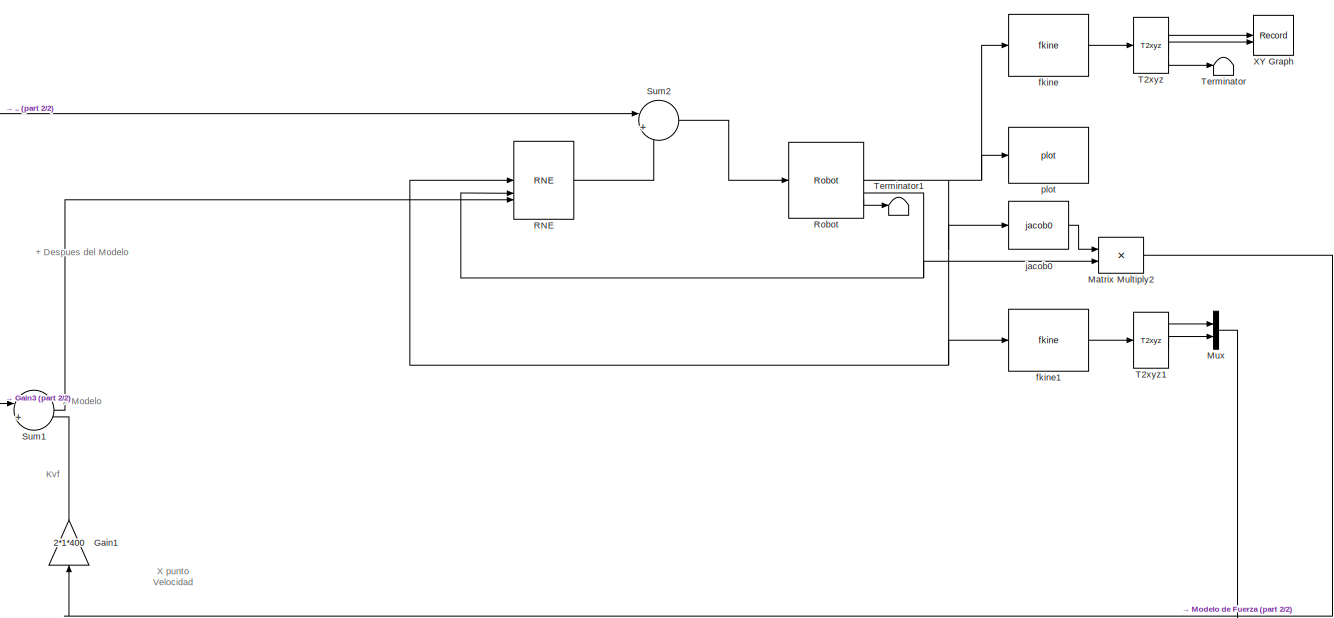
[diagram: root canvas - part 1/2, right side, full height]
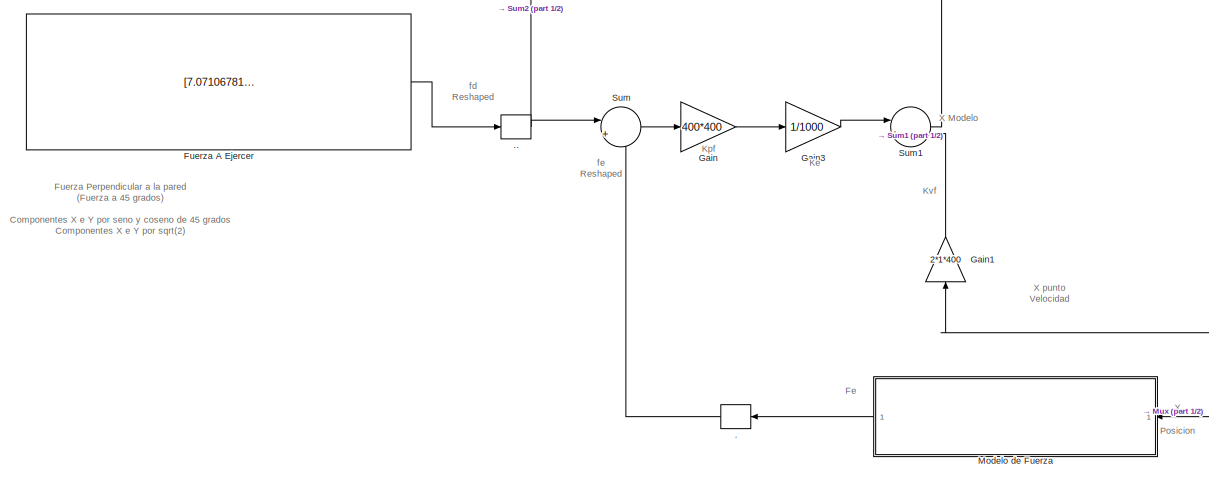
[diagram: root canvas - part 2/2, bottom left region]
MODEL slx_9b148fac4d0c
KIND model
CONFIG AbsTol = auto
CONFIG EnableMultiTasking = off
CONFIG FixedStep = auto
CONFIG MaxStep = auto
CONFIG MinStep = auto
CONFIG RelTol = 1e-3
CONFIG SampleTimeConstraint = Unconstrained
CONFIG SolverName = VariableStepAuto
CONFIG StartTime = 0.0
CONFIG StopTime = 10.0
BLOCK [Reshape] .
  NameLocation = top
  OutputDimensionality = Column vector (2-D)
BLOCK [Reshape] ..
  OutputDimensionality = Column vector (2-D)
BLOCK [Constant] Fuerza A Ejercer
  Value = [7.0710678118654752440084436210485 7.0710678118654752440084436210485]
BLOCK [Gain] Gain
  Gain = 400*400
BLOCK [Gain] Gain1
  Gain = 2*1*400
  NameLocation = right
BLOCK [Gain] Gain3
  Gain = 1/1000
BLOCK [Product] Matrix Multiply2
  Multiplication = Matrix(*)
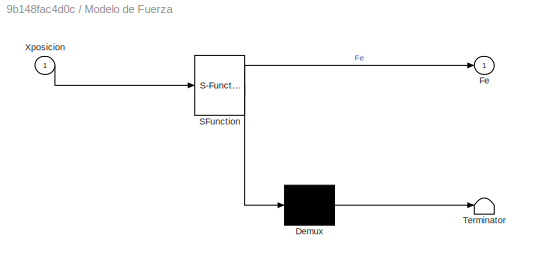
BLOCK [SubSystem] Modelo de Fuerza
  ErrorFcn = Stateflow.Translate.translate
  PermitHierarchicalResolution = ExplicitOnly
  SFBlockType = MATLAB Function
  TreatAsAtomicUnit = on
BLOCK [Demux] Modelo de Fuerza/ Demux 
  Outputs = 1
BLOCK [S-Function] Modelo de Fuerza/ SFunction 
  EnableBusSupport = on
  FunctionName = sf_sfun
  PortCounts = [1 2]
  SFcnIsStateOwnerBlock = off
  SFunctionDeploymentMode = off
  Tag = Stateflow S-Function 4
BLOCK [Terminator] Modelo de Fuerza/ Terminator 
BLOCK [Outport] Modelo de Fuerza/Fe
BLOCK [Inport] Modelo de Fuerza/Xposicion
BLOCK [Mux] Mux
  DisplayOption = bar
  Inputs = 2
BLOCK [Reference] RNE  REF=roblocks/Arm/RNE  (lib defined in mdl_2a292b13c81b, mdl_69400f8cfe22, +12 more)
  SourceBlock = roblocks/Arm/RNE
BLOCK [Reference] Robot  REF=roblocks/Arm/Robot  (lib defined in mdl_2a292b13c81b, mdl_69400f8cfe22, +12 more)
  SourceBlock = roblocks/Arm/Robot
BLOCK [Sum] Sum
  Inputs = |+-
BLOCK [Sum] Sum1
  Inputs = |+-
BLOCK [Sum] Sum2
  Inputs = |++
BLOCK [Reference] T2xyz  REF=roblocks/Toolbox/T2xyz  (lib defined in mdl_2a292b13c81b, mdl_69400f8cfe22, +12 more)
  SourceBlock = roblocks/Toolbox/T2xyz
BLOCK [Reference] T2xyz1  REF=roblocks/Toolbox/T2xyz  (lib defined in mdl_2a292b13c81b, mdl_69400f8cfe22, +12 more)
  SourceBlock = roblocks/Toolbox/T2xyz
BLOCK [Terminator] Terminator
BLOCK [Terminator] Terminator1
BLOCK [Record] XY Graph
  CompatibilityTag = XY
  FileSettingsInternal = {"entries":[{"content":{"excelSettings":{"content":{},"type":"Streamout.ExcelSettings"}},"type":"Streamout.FileSettingStorage","uuid":""}],"packageUris":["http:\/\/schema.mathworks.com\/mf0\/streamout_blocks\/R2020a"],"version":"1.0"}
  Layout = [1 1]
  SignalsInternal = {"entries":[{"content":{"signals":[{"content":{"blockPath":[],"dimensions":[1],"domain":"","lineColor":"#a2142f","plots":[1],"port":1,"signalID":32,"signalName":"XY Graph:1"},"type":"RecordBlkView.Signal","uuid":""},{"content":{"blockPath":[],"dimensions":[1],"domain":"","lineColor":"#139fff","plots":[1],"port":2,"signalID":35,"signalName":"XY Graph:2"},"type":"RecordBlkView.Signal","uuid":""}]},"...<+142ch>
  VisualizationBindings = {"xyplotplugin":{"info":[{"series":[{"bindingParametersList":[{"parameter":"X-Axis","signalID":32,"signalName":"XY Graph:1"},{"parameter":"Y-Axis","signalID":35,"signalName":"XY Graph:2"}],"seriesID":33085}],"subplotID":1}]}}
  st = -1
BLOCK [Reference] fkine  REF=roblocks/Arm/fkine  (lib defined in mdl_2a292b13c81b, mdl_69400f8cfe22, +12 more)
  SourceBlock = roblocks/Arm/fkine
BLOCK [Reference] fkine1  REF=roblocks/Arm/fkine  (lib defined in mdl_2a292b13c81b, mdl_69400f8cfe22, +12 more)
  SourceBlock = roblocks/Arm/fkine
BLOCK [Reference] jacob0   REF=roblocks/Arm/jacob0  (lib defined in mdl_2a292b13c81b, mdl_69400f8cfe22, +12 more)

  SourceBlock = roblocks/Arm/jacob0
BLOCK [Reference] plot  REF=roblocks/Arm/plot  (lib defined in mdl_2a292b13c81b, mdl_69400f8cfe22, +12 more)
  SourceBlock = roblocks/Arm/plot
ANNOTATION (root): + Despues del Modelo
ANNOTATION (root): Fe
ANNOTATION (root): Fuerza Perpendicular a la pared (Fuerza a 45 grados) Componentes X e Y por seno y coseno de 45 grados Componentes X e Y por sqrt(2) Fuerza dato = 10N Fuerza en ejes = 10.sen o cos (45)
ANNOTATION (root): Ke
ANNOTATION (root): Kpf
ANNOTATION (root): Kvf
ANNOTATION (root): X Posicion
ANNOTATION (root): X Modelo
ANNOTATION (root): X punto Velocidad
ANNOTATION (root): fd Reshaped
ANNOTATION (root): fe Reshaped
NET ..:1 -> Sum2:1, Sum:1
LINE .:1 -> Sum:2
LINE Fuerza A Ejercer:1 -> ..:1
LINE Gain1:1 -> Sum1:2
LINE Gain3:1 -> Sum1:1
LINE Gain:1 -> Gain3:1
LINE Matrix Multiply2:1 -> Gain1:1
LINE Modelo de Fuerza:1 -> .:1
LINE Mux:1 -> Modelo de Fuerza:1
LINE RNE:1 -> Sum2:2
NET Robot:1 -> RNE:1, fkine1:1, fkine:1, jacob0 :1, plot:1
NET Robot:2 -> Matrix Multiply2:2, RNE:2
LINE Robot:3 -> Terminator1:1
LINE Sum1:1 -> RNE:3
LINE Sum2:1 -> Robot:1
LINE Sum:1 -> Gain:1
LINE T2xyz1:1 -> Mux:1
LINE T2xyz1:2 -> Mux:2
LINE T2xyz:1 -> XY Graph:1
LINE T2xyz:2 -> XY Graph:2
LINE T2xyz:3 -> Terminator:1
LINE fkine1:1 -> T2xyz1:1
LINE fkine:1 -> T2xyz:1
LINE jacob0 :1 -> Matrix Multiply2:1
note: NET lines group one-source signal fan-out (src -> all destinations, sorted); 1:1 wires keep LINE
CHART Modelo de Fuerza states=1 transitions=1
  STATE_LABEL 'eML_blk_kernel()'
  STATE_LABEL 'SCRIPT:\n%Input: Vector de coordenadas bidimensionales Xposicion como entrada\n%Output: Vector de fuerzas bidimensionales Fe \n\n%Description: Evalar la posición del punto representado por las coordenadas \n%Xposicion con respecto a la pared \n%En base a ello, calcula la fuerza correspondiente.\n\nfunction Fe = modeloFuerzaCalc(Xposicion)\n\nkEnv = 1000; %N/mm\nejeY = Xposicion(2);\nejeX = Xposicion(1);\n\n%Par...<+714ch>'
CHART  states=0 transitions=0
